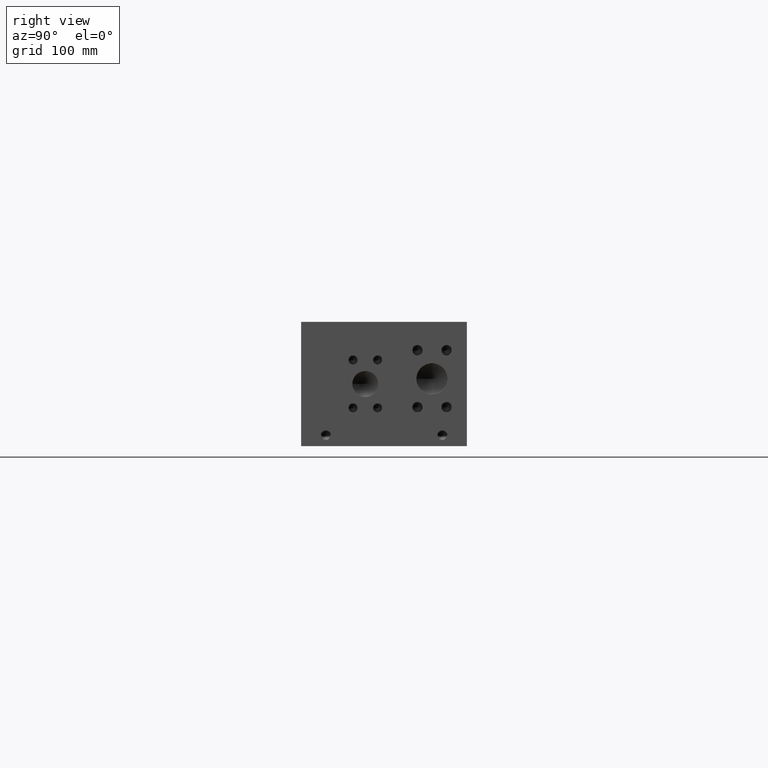
[diagram: clean part render]
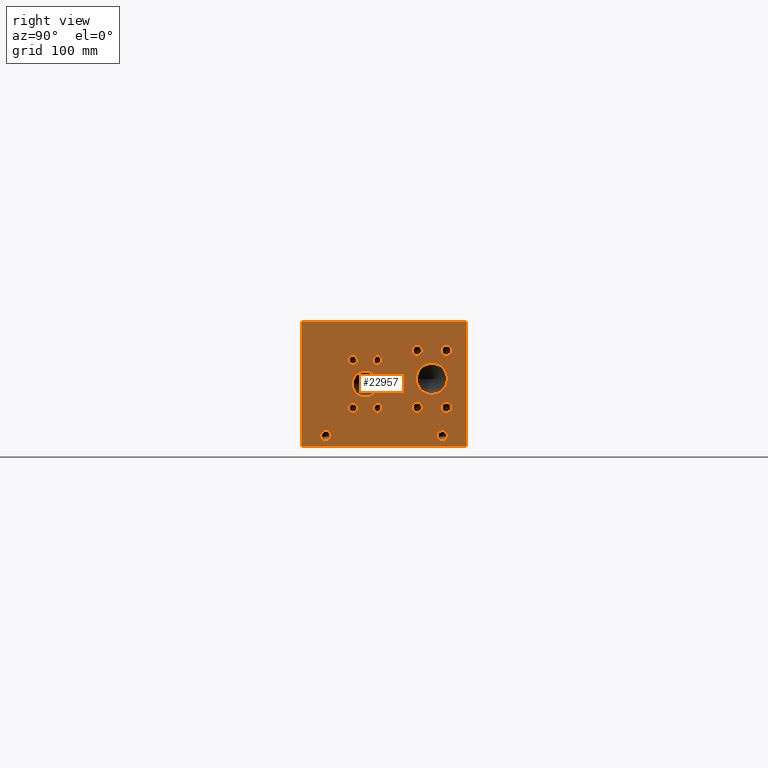
[diagram: same view with one face highlighted and labeled with its STEP entity id]
A machine part, right view. The second image highlights one B-rep face of the part: STEP entity #22957.
In plain terms, the highlighted planar face has unit normal (1, 0, 0).
Its self-contained STEP definition (entity closure, byte-faithful):
#808=CIRCLE('',#24129,19.05);
#809=CIRCLE('',#24130,19.05);
#810=CIRCLE('',#24131,6.35);
#811=CIRCLE('',#24132,6.35);
#812=CIRCLE('',#24133,6.35);
#813=CIRCLE('',#24134,6.35);
#814=CIRCLE('',#24135,6.35);
#815=CIRCLE('',#24136,6.35);
#816=CIRCLE('',#24137,6.35);
#817=CIRCLE('',#24138,6.35);
#818=CIRCLE('',#24139,15.875);
#819=CIRCLE('',#24140,15.875);
#820=CIRCLE('',#24141,5.5626);
#821=CIRCLE('',#24142,5.5626);
#822=CIRCLE('',#24143,5.5626);
#823=CIRCLE('',#24144,5.5626);
#824=CIRCLE('',#24145,5.5626);
#825=CIRCLE('',#24146,5.5626);
#826=CIRCLE('',#24147,5.5626);
#827=CIRCLE('',#24148,5.5626);
#828=CIRCLE('',#24149,6.35);
#829=CIRCLE('',#24150,6.35);
#830=CIRCLE('',#24151,6.35);
#831=CIRCLE('',#24152,6.35);
#2101=B_SPLINE_CURVE_WITH_KNOTS('',2,(#37799,#37800,#37801,#37802),
 .UNSPECIFIED.,.F.,.F.,(3,1,3),(0.,1.,2.),.UNSPECIFIED.);
#2103=B_SPLINE_CURVE_WITH_KNOTS('',2,(#37820,#37821,#37822,#37823),
 .UNSPECIFIED.,.F.,.F.,(3,1,3),(0.,1.,2.),.UNSPECIFIED.);
#2105=B_SPLINE_CURVE_WITH_KNOTS('',2,(#37869,#37870,#37871,#37872),
 .UNSPECIFIED.,.F.,.F.,(3,1,3),(0.,1.,2.),.UNSPECIFIED.);
#2107=B_SPLINE_CURVE_WITH_KNOTS('',2,(#37887,#37888,#37889,#37890),
 .UNSPECIFIED.,.F.,.F.,(3,1,3),(0.,1.,2.),.UNSPECIFIED.);
#2253=FACE_BOUND('',#4463,.T.);
#2254=FACE_BOUND('',#4464,.T.);
#2255=FACE_BOUND('',#4465,.T.);
#2256=FACE_BOUND('',#4466,.T.);
#2257=FACE_BOUND('',#4467,.T.);
#2258=FACE_BOUND('',#4468,.T.);
#2259=FACE_BOUND('',#4469,.T.);
#2260=FACE_BOUND('',#4470,.T.);
#2261=FACE_BOUND('',#4471,.T.);
#2262=FACE_BOUND('',#4472,.T.);
#2263=FACE_BOUND('',#4473,.T.);
#2264=FACE_BOUND('',#4474,.T.);
#2265=FACE_BOUND('',#4475,.T.);
#2266=FACE_BOUND('',#4476,.T.);
#3098=FACE_OUTER_BOUND('',#4462,.T.);
#4462=EDGE_LOOP('',(#18073,#18074,#18075,#18076));
#4463=EDGE_LOOP('',(#18077,#18078));
#4464=EDGE_LOOP('',(#18079,#18080));
#4465=EDGE_LOOP('',(#18081,#18082));
#4466=EDGE_LOOP('',(#18083,#18084));
#4467=EDGE_LOOP('',(#18085,#18086));
#4468=EDGE_LOOP('',(#18087,#18088));
#4469=EDGE_LOOP('',(#18089,#18090));
#4470=EDGE_LOOP('',(#18091,#18092));
#4471=EDGE_LOOP('',(#18093,#18094));
#4472=EDGE_LOOP('',(#18095,#18096));
#4473=EDGE_LOOP('',(#18097,#18098));
#4474=EDGE_LOOP('',(#18099,#18100));
#4475=EDGE_LOOP('',(#18101,#18102,#18103,#18104,#18105,#18106,#18107,#18108));
#4476=EDGE_LOOP('',(#18109,#18110,#18111,#18112,#18113,#18114,#18115,#18116,
#18117));
#5321=LINE('',#31600,#7147);
#6554=LINE('',#37832,#8380);
#6557=LINE('',#37838,#8383);
#6560=LINE('',#37844,#8386);
#6563=LINE('',#37850,#8389);
#6566=LINE('',#37856,#8392);
#6570=LINE('',#37898,#8396);
#6571=LINE('',#37900,#8397);
#6572=LINE('',#37901,#8398);
#6573=LINE('',#37952,#8399);
#6574=LINE('',#37954,#8400);
#6575=LINE('',#37956,#8401);
#6576=LINE('',#37958,#8402);
#6577=LINE('',#37960,#8403);
#6578=LINE('',#37962,#8404);
#6579=LINE('',#37964,#8405);
#6580=LINE('',#37965,#8406);
#7147=VECTOR('',#25681,10.);
#8380=VECTOR('',#27976,10.);
#8383=VECTOR('',#27981,10.);
#8386=VECTOR('',#27986,10.);
#8389=VECTOR('',#27991,10.);
#8392=VECTOR('',#27996,10.);
#8396=VECTOR('',#28004,10.);
#8397=VECTOR('',#28005,10.);
#8398=VECTOR('',#28006,10.);
#8399=VECTOR('',#28055,10.);
#8400=VECTOR('',#28056,10.);
#8401=VECTOR('',#28057,10.);
#8402=VECTOR('',#28058,10.);
#8403=VECTOR('',#28059,10.);
#8404=VECTOR('',#28060,10.);
#8405=VECTOR('',#28061,10.);
#8406=VECTOR('',#28062,10.);
#8962=VERTEX_POINT('',#31597);
#8963=VERTEX_POINT('',#31599);
#10177=VERTEX_POINT('',#37797);
#10178=VERTEX_POINT('',#37798);
#10181=VERTEX_POINT('',#37819);
#10183=VERTEX_POINT('',#37831);
#10185=VERTEX_POINT('',#37837);
#10187=VERTEX_POINT('',#37843);
#10189=VERTEX_POINT('',#37849);
#10191=VERTEX_POINT('',#37855);
#10193=VERTEX_POINT('',#37868);
#10195=VERTEX_POINT('',#37897);
#10196=VERTEX_POINT('',#37899);
#10197=VERTEX_POINT('',#37902);
#10198=VERTEX_POINT('',#37903);
#10199=VERTEX_POINT('',#37906);
#10200=VERTEX_POINT('',#37907);
#10201=VERTEX_POINT('',#37910);
#10202=VERTEX_POINT('',#37911);
#10203=VERTEX_POINT('',#37914);
#10204=VERTEX_POINT('',#37915);
#10205=VERTEX_POINT('',#37918);
#10206=VERTEX_POINT('',#37919);
#10207=VERTEX_POINT('',#37922);
#10208=VERTEX_POINT('',#37923);
#10209=VERTEX_POINT('',#37926);
#10210=VERTEX_POINT('',#37927);
#10211=VERTEX_POINT('',#37930);
#10212=VERTEX_POINT('',#37931);
#10213=VERTEX_POINT('',#37934);
#10214=VERTEX_POINT('',#37935);
#10215=VERTEX_POINT('',#37938);
#10216=VERTEX_POINT('',#37939);
#10217=VERTEX_POINT('',#37942);
#10218=VERTEX_POINT('',#37943);
#10219=VERTEX_POINT('',#37946);
#10220=VERTEX_POINT('',#37947);
#10221=VERTEX_POINT('',#37950);
#10222=VERTEX_POINT('',#37951);
#10223=VERTEX_POINT('',#37953);
#10224=VERTEX_POINT('',#37955);
#10225=VERTEX_POINT('',#37957);
#10226=VERTEX_POINT('',#37959);
#10227=VERTEX_POINT('',#37961);
#10228=VERTEX_POINT('',#37963);
#11353=EDGE_CURVE('',#8962,#8963,#5321,.T.);
#13111=EDGE_CURVE('',#10177,#10178,#2101,.T.);
#13115=EDGE_CURVE('',#10181,#10177,#2103,.T.);
#13118=EDGE_CURVE('',#10183,#10181,#6554,.T.);
#13121=EDGE_CURVE('',#10185,#10183,#6557,.T.);
#13124=EDGE_CURVE('',#10187,#10185,#6560,.T.);
#13127=EDGE_CURVE('',#10189,#10187,#6563,.T.);
#13130=EDGE_CURVE('',#10191,#10189,#6566,.T.);
#13133=EDGE_CURVE('',#10193,#10191,#2105,.T.);
#13136=EDGE_CURVE('',#10178,#10193,#2107,.T.);
#13138=EDGE_CURVE('',#8962,#10195,#6570,.T.);
#13139=EDGE_CURVE('',#10195,#10196,#6571,.T.);
#13140=EDGE_CURVE('',#8963,#10196,#6572,.T.);
#13141=EDGE_CURVE('',#10197,#10198,#808,.T.);
#13142=EDGE_CURVE('',#10198,#10197,#809,.T.);
#13143=EDGE_CURVE('',#10199,#10200,#810,.T.);
#13144=EDGE_CURVE('',#10200,#10199,#811,.T.);
#13145=EDGE_CURVE('',#10201,#10202,#812,.T.);
#13146=EDGE_CURVE('',#10202,#10201,#813,.T.);
#13147=EDGE_CURVE('',#10203,#10204,#814,.T.);
#13148=EDGE_CURVE('',#10204,#10203,#815,.T.);
#13149=EDGE_CURVE('',#10205,#10206,#816,.T.);
#13150=EDGE_CURVE('',#10206,#10205,#817,.T.);
#13151=EDGE_CURVE('',#10207,#10208,#818,.T.);
#13152=EDGE_CURVE('',#10208,#10207,#819,.T.);
#13153=EDGE_CURVE('',#10209,#10210,#820,.T.);
#13154=EDGE_CURVE('',#10210,#10209,#821,.T.);
#13155=EDGE_CURVE('',#10211,#10212,#822,.T.);
#13156=EDGE_CURVE('',#10212,#10211,#823,.T.);
#13157=EDGE_CURVE('',#10213,#10214,#824,.T.);
#13158=EDGE_CURVE('',#10214,#10213,#825,.T.);
#13159=EDGE_CURVE('',#10215,#10216,#826,.T.);
#13160=EDGE_CURVE('',#10216,#10215,#827,.T.);
#13161=EDGE_CURVE('',#10217,#10218,#828,.T.);
#13162=EDGE_CURVE('',#10218,#10217,#829,.T.);
#13163=EDGE_CURVE('',#10219,#10220,#830,.T.);
#13164=EDGE_CURVE('',#10220,#10219,#831,.T.);
#13165=EDGE_CURVE('',#10221,#10222,#6573,.T.);
#13166=EDGE_CURVE('',#10222,#10223,#6574,.T.);
#13167=EDGE_CURVE('',#10223,#10224,#6575,.T.);
#13168=EDGE_CURVE('',#10224,#10225,#6576,.T.);
#13169=EDGE_CURVE('',#10225,#10226,#6577,.T.);
#13170=EDGE_CURVE('',#10226,#10227,#6578,.T.);
#13171=EDGE_CURVE('',#10227,#10228,#6579,.T.);
#13172=EDGE_CURVE('',#10228,#10221,#6580,.T.);
#18073=ORIENTED_EDGE('',*,*,#13138,.T.);
#18074=ORIENTED_EDGE('',*,*,#13139,.T.);
#18075=ORIENTED_EDGE('',*,*,#13140,.F.);
#18076=ORIENTED_EDGE('',*,*,#11353,.F.);
#18077=ORIENTED_EDGE('',*,*,#13141,.T.);
#18078=ORIENTED_EDGE('',*,*,#13142,.T.);
#18079=ORIENTED_EDGE('',*,*,#13143,.T.);
#18080=ORIENTED_EDGE('',*,*,#13144,.T.);
#18081=ORIENTED_EDGE('',*,*,#13145,.T.);
#18082=ORIENTED_EDGE('',*,*,#13146,.T.);
#18083=ORIENTED_EDGE('',*,*,#13147,.T.);
#18084=ORIENTED_EDGE('',*,*,#13148,.T.);
#18085=ORIENTED_EDGE('',*,*,#13149,.T.);
#18086=ORIENTED_EDGE('',*,*,#13150,.T.);
#18087=ORIENTED_EDGE('',*,*,#13151,.T.);
#18088=ORIENTED_EDGE('',*,*,#13152,.T.);
#18089=ORIENTED_EDGE('',*,*,#13153,.T.);
#18090=ORIENTED_EDGE('',*,*,#13154,.T.);
#18091=ORIENTED_EDGE('',*,*,#13155,.T.);
#18092=ORIENTED_EDGE('',*,*,#13156,.T.);
#18093=ORIENTED_EDGE('',*,*,#13157,.T.);
#18094=ORIENTED_EDGE('',*,*,#13158,.T.);
#18095=ORIENTED_EDGE('',*,*,#13159,.T.);
#18096=ORIENTED_EDGE('',*,*,#13160,.T.);
#18097=ORIENTED_EDGE('',*,*,#13161,.T.);
#18098=ORIENTED_EDGE('',*,*,#13162,.T.);
#18099=ORIENTED_EDGE('',*,*,#13163,.T.);
#18100=ORIENTED_EDGE('',*,*,#13164,.T.);
#18101=ORIENTED_EDGE('',*,*,#13165,.T.);
#18102=ORIENTED_EDGE('',*,*,#13166,.T.);
#18103=ORIENTED_EDGE('',*,*,#13167,.T.);
#18104=ORIENTED_EDGE('',*,*,#13168,.T.);
#18105=ORIENTED_EDGE('',*,*,#13169,.T.);
#18106=ORIENTED_EDGE('',*,*,#13170,.T.);
#18107=ORIENTED_EDGE('',*,*,#13171,.T.);
#18108=ORIENTED_EDGE('',*,*,#13172,.T.);
#18109=ORIENTED_EDGE('',*,*,#13111,.T.);
#18110=ORIENTED_EDGE('',*,*,#13136,.T.);
#18111=ORIENTED_EDGE('',*,*,#13133,.T.);
#18112=ORIENTED_EDGE('',*,*,#13130,.T.);
#18113=ORIENTED_EDGE('',*,*,#13127,.T.);
#18114=ORIENTED_EDGE('',*,*,#13124,.T.);
#18115=ORIENTED_EDGE('',*,*,#13121,.T.);
#18116=ORIENTED_EDGE('',*,*,#13118,.T.);
#18117=ORIENTED_EDGE('',*,*,#13115,.T.);
#21549=PLANE('',#24128);
#22957=ADVANCED_FACE('',(#3098,#2253,#2254,#2255,#2256,#2257,#2258,#2259,
#2260,#2261,#2262,#2263,#2264,#2265,#2266),#21549,.T.);
#24128=AXIS2_PLACEMENT_3D('',#37896,#28002,#28003);
#24129=AXIS2_PLACEMENT_3D('',#37904,#28007,#28008);
#24130=AXIS2_PLACEMENT_3D('',#37905,#28009,#28010);
#24131=AXIS2_PLACEMENT_3D('',#37908,#28011,#28012);
#24132=AXIS2_PLACEMENT_3D('',#37909,#28013,#28014);
#24133=AXIS2_PLACEMENT_3D('',#37912,#28015,#28016);
#24134=AXIS2_PLACEMENT_3D('',#37913,#28017,#28018);
#24135=AXIS2_PLACEMENT_3D('',#37916,#28019,#28020);
#24136=AXIS2_PLACEMENT_3D('',#37917,#28021,#28022);
#24137=AXIS2_PLACEMENT_3D('',#37920,#28023,#28024);
#24138=AXIS2_PLACEMENT_3D('',#37921,#28025,#28026);
#24139=AXIS2_PLACEMENT_3D('',#37924,#28027,#28028);
#24140=AXIS2_PLACEMENT_3D('',#37925,#28029,#28030);
#24141=AXIS2_PLACEMENT_3D('',#37928,#28031,#28032);
#24142=AXIS2_PLACEMENT_3D('',#37929,#28033,#28034);
#24143=AXIS2_PLACEMENT_3D('',#37932,#28035,#28036);
#24144=AXIS2_PLACEMENT_3D('',#37933,#28037,#28038);
#24145=AXIS2_PLACEMENT_3D('',#37936,#28039,#28040);
#24146=AXIS2_PLACEMENT_3D('',#37937,#28041,#28042);
#24147=AXIS2_PLACEMENT_3D('',#37940,#28043,#28044);
#24148=AXIS2_PLACEMENT_3D('',#37941,#28045,#28046);
#24149=AXIS2_PLACEMENT_3D('',#37944,#28047,#28048);
#24150=AXIS2_PLACEMENT_3D('',#37945,#28049,#28050);
#24151=AXIS2_PLACEMENT_3D('',#37948,#28051,#28052);
#24152=AXIS2_PLACEMENT_3D('',#37949,#28053,#28054);
#25681=DIRECTION('',(0.,0.,1.));
#27976=DIRECTION('',(0.,1.,0.));
#27981=DIRECTION('',(0.,0.,1.));
#27986=DIRECTION('',(0.,-1.,0.));
#27991=DIRECTION('',(0.,0.,-1.));
#27996=DIRECTION('',(0.,-1.,0.));
#28002=DIRECTION('center_axis',(1.,0.,0.));
#28003=DIRECTION('ref_axis',(0.,1.,0.));
#28004=DIRECTION('',(0.,1.,0.));
#28005=DIRECTION('',(0.,0.,1.));
#28006=DIRECTION('',(0.,1.,0.));
#28007=DIRECTION('center_axis',(-1.,0.,0.));
#28008=DIRECTION('ref_axis',(0.,1.,0.));
#28009=DIRECTION('center_axis',(-1.,0.,0.));
#28010=DIRECTION('ref_axis',(0.,1.,0.));
#28011=DIRECTION('center_axis',(-1.,0.,0.));
#28012=DIRECTION('ref_axis',(0.,1.,0.));
#28013=DIRECTION('center_axis',(-1.,0.,0.));
#28014=DIRECTION('ref_axis',(0.,1.,0.));
#28015=DIRECTION('center_axis',(-1.,0.,0.));
#28016=DIRECTION('ref_axis',(0.,1.,0.));
#28017=DIRECTION('center_axis',(-1.,0.,0.));
#28018=DIRECTION('ref_axis',(0.,1.,0.));
#28019=DIRECTION('center_axis',(-1.,0.,0.));
#28020=DIRECTION('ref_axis',(0.,1.,0.));
#28021=DIRECTION('center_axis',(-1.,0.,0.));
#28022=DIRECTION('ref_axis',(0.,1.,0.));
#28023=DIRECTION('center_axis',(-1.,0.,0.));
#28024=DIRECTION('ref_axis',(0.,1.,0.));
#28025=DIRECTION('center_axis',(-1.,0.,0.));
#28026=DIRECTION('ref_axis',(0.,1.,0.));
#28027=DIRECTION('center_axis',(-1.,0.,0.));
#28028=DIRECTION('ref_axis',(0.,1.,0.));
#28029=DIRECTION('center_axis',(-1.,0.,0.));
#28030=DIRECTION('ref_axis',(0.,1.,0.));
#28031=DIRECTION('center_axis',(-1.,0.,0.));
#28032=DIRECTION('ref_axis',(0.,1.,0.));
#28033=DIRECTION('center_axis',(-1.,0.,0.));
#28034=DIRECTION('ref_axis',(0.,1.,0.));
#28035=DIRECTION('center_axis',(-1.,0.,0.));
#28036=DIRECTION('ref_axis',(0.,1.,0.));
#28037=DIRECTION('center_axis',(-1.,0.,0.));
#28038=DIRECTION('ref_axis',(0.,1.,0.));
#28039=DIRECTION('center_axis',(-1.,0.,0.));
#28040=DIRECTION('ref_axis',(0.,1.,0.));
#28041=DIRECTION('center_axis',(-1.,0.,0.));
#28042=DIRECTION('ref_axis',(0.,1.,0.));
#28043=DIRECTION('center_axis',(-1.,0.,0.));
#28044=DIRECTION('ref_axis',(0.,1.,0.));
#28045=DIRECTION('center_axis',(-1.,0.,0.));
#28046=DIRECTION('ref_axis',(0.,1.,0.));
#28047=DIRECTION('center_axis',(-1.,0.,0.));
#28048=DIRECTION('ref_axis',(0.,1.,0.));
#28049=DIRECTION('center_axis',(-1.,0.,0.));
#28050=DIRECTION('ref_axis',(0.,1.,0.));
#28051=DIRECTION('center_axis',(-1.,0.,0.));
#28052=DIRECTION('ref_axis',(0.,1.,0.));
#28053=DIRECTION('center_axis',(-1.,0.,0.));
#28054=DIRECTION('ref_axis',(0.,1.,0.));
#28055=DIRECTION('',(0.,-1.,0.));
#28056=DIRECTION('',(0.,0.,1.));
#28057=DIRECTION('',(0.,-1.,0.));
#28058=DIRECTION('',(0.,0.,1.));
#28059=DIRECTION('',(0.,1.,0.));
#28060=DIRECTION('',(0.,0.,-1.));
#28061=DIRECTION('',(0.,-1.,0.));
#28062=DIRECTION('',(0.,0.,-1.));
#31597=CARTESIAN_POINT('',(860.425,0.,0.));
#31599=CARTESIAN_POINT('',(860.425,0.,152.4));
#31600=CARTESIAN_POINT('',(860.425,0.,0.));
#37797=CARTESIAN_POINT('',(860.425,80.1005672023594,132.166368143971));
#37798=CARTESIAN_POINT('',(860.425,80.857009654532,130.648337372604));
#37799=CARTESIAN_POINT('Ctrl Pts',(860.425,80.1005672023594,132.166368143971));
#37800=CARTESIAN_POINT('Ctrl Pts',(860.425,80.4556320268486,131.924512393956));
#37801=CARTESIAN_POINT('Ctrl Pts',(860.425,80.857009654532,131.178361675827));
#37802=CARTESIAN_POINT('Ctrl Pts',(860.425,80.857009654532,130.648337372604));
#37819=CARTESIAN_POINT('',(860.425,78.4384521543883,132.562599904633));
#37820=CARTESIAN_POINT('Ctrl Pts',(860.425,78.4384521543883,132.562599904633));
#37821=CARTESIAN_POINT('Ctrl Pts',(860.425,79.0044975267624,132.562599904633));
#37822=CARTESIAN_POINT('Ctrl Pts',(860.425,79.796961048086,132.377348691856));
#37823=CARTESIAN_POINT('Ctrl Pts',(860.425,80.1005672023594,132.166368143971));
#37831=CARTESIAN_POINT('',(860.425,76.8432333776978,132.562599904633));
#37832=CARTESIAN_POINT('',(860.425,38.4216166888489,132.562599904633));
#37837=CARTESIAN_POINT('',(860.425,76.8432333776978,126.2126));
#37838=CARTESIAN_POINT('',(860.425,76.8432333776978,63.1063));
#37843=CARTESIAN_POINT('',(860.425,77.6871555692373,126.2126));
#37844=CARTESIAN_POINT('',(860.425,38.8435777846186,126.2126));
#37849=CARTESIAN_POINT('',(860.425,77.6871555692373,128.579698829928));
#37850=CARTESIAN_POINT('',(860.425,77.6871555692373,64.2898494149639));
#37855=CARTESIAN_POINT('',(860.425,78.4024310852372,128.579698829928));
#37856=CARTESIAN_POINT('',(860.425,39.2012155426186,128.579698829928));
#37868=CARTESIAN_POINT('',(860.425,80.3012560162011,129.23836980869));
#37869=CARTESIAN_POINT('Ctrl Pts',(860.425,80.3012560162011,129.23836980869));
#37870=CARTESIAN_POINT('Ctrl Pts',(860.425,79.9719205268198,128.914180186331));
#37871=CARTESIAN_POINT('Ctrl Pts',(860.425,79.0816855320861,128.579698829928));
#37872=CARTESIAN_POINT('Ctrl Pts',(860.425,78.4024310852372,128.579698829928));
#37887=CARTESIAN_POINT('Ctrl Pts',(860.425,80.857009654532,130.648337372604));
#37888=CARTESIAN_POINT('Ctrl Pts',(860.425,80.857009654532,130.236668010877));
#37889=CARTESIAN_POINT('Ctrl Pts',(860.425,80.5636952343018,129.495663159769));
#37890=CARTESIAN_POINT('Ctrl Pts',(860.425,80.3012560162011,129.23836980869));
#37896=CARTESIAN_POINT('Origin',(860.425,0.,0.));
#37897=CARTESIAN_POINT('',(860.425,203.2,0.));
#37898=CARTESIAN_POINT('',(860.425,0.,0.));
#37899=CARTESIAN_POINT('',(860.425,203.2,152.4));
#37900=CARTESIAN_POINT('',(860.425,203.2,0.));
#37901=CARTESIAN_POINT('',(860.425,0.,152.4));
#37902=CARTESIAN_POINT('',(860.425,179.4002,82.55));
#37903=CARTESIAN_POINT('',(860.425,141.3002,82.55));
#37904=CARTESIAN_POINT('Origin',(860.425,160.3502,82.55));
#37905=CARTESIAN_POINT('Origin',(860.425,160.3502,82.55));
#37906=CARTESIAN_POINT('',(860.425,148.844,117.475));
#37907=CARTESIAN_POINT('',(860.425,136.144,117.475));
#37908=CARTESIAN_POINT('Origin',(860.425,142.494,117.475));
#37909=CARTESIAN_POINT('Origin',(860.425,142.494,117.475));
#37910=CARTESIAN_POINT('',(860.425,184.5564,47.625));
#37911=CARTESIAN_POINT('',(860.425,171.8564,47.625));
#37912=CARTESIAN_POINT('Origin',(860.425,178.2064,47.625));
#37913=CARTESIAN_POINT('Origin',(860.425,178.2064,47.625));
#37914=CARTESIAN_POINT('',(860.425,184.5564,117.475));
#37915=CARTESIAN_POINT('',(860.425,171.8564,117.475));
#37916=CARTESIAN_POINT('Origin',(860.425,178.2064,117.475));
#37917=CARTESIAN_POINT('Origin',(860.425,178.2064,117.475));
#37918=CARTESIAN_POINT('',(860.425,148.844,47.625));
#37919=CARTESIAN_POINT('',(860.425,136.144,47.625));
#37920=CARTESIAN_POINT('Origin',(860.425,142.494,47.625));
#37921=CARTESIAN_POINT('Origin',(860.425,142.494,47.625));
#37922=CARTESIAN_POINT('',(860.425,94.4626,76.2));
#37923=CARTESIAN_POINT('',(860.425,62.7126,76.2));
#37924=CARTESIAN_POINT('Origin',(860.425,78.5876,76.2));
#37925=CARTESIAN_POINT('Origin',(860.425,78.5876,76.2));
#37926=CARTESIAN_POINT('',(860.425,69.0626,46.8376));
#37927=CARTESIAN_POINT('',(860.425,57.9374,46.8376));
#37928=CARTESIAN_POINT('Origin',(860.425,63.5,46.8376));
#37929=CARTESIAN_POINT('Origin',(860.425,63.5,46.8376));
#37930=CARTESIAN_POINT('',(860.425,99.2378,105.5624));
#37931=CARTESIAN_POINT('',(860.425,88.1126,105.5624));
#37932=CARTESIAN_POINT('Origin',(860.425,93.6752,105.5624));
#37933=CARTESIAN_POINT('Origin',(860.425,93.6752,105.5624));
#37934=CARTESIAN_POINT('',(860.425,69.0626,105.5624));
#37935=CARTESIAN_POINT('',(860.425,57.9374,105.5624));
#37936=CARTESIAN_POINT('Origin',(860.425,63.5,105.5624));
#37937=CARTESIAN_POINT('Origin',(860.425,63.5,105.5624));
#37938=CARTESIAN_POINT('',(860.425,99.2378,46.8376));
#37939=CARTESIAN_POINT('',(860.425,88.1126,46.8376));
#37940=CARTESIAN_POINT('Origin',(860.425,93.6752,46.8376));
#37941=CARTESIAN_POINT('Origin',(860.425,93.6752,46.8376));
#37942=CARTESIAN_POINT('',(860.425,179.3748,12.7));
#37943=CARTESIAN_POINT('',(860.425,166.6748,12.7));
#37944=CARTESIAN_POINT('Origin',(860.425,173.0248,12.7));
#37945=CARTESIAN_POINT('Origin',(860.425,173.0248,12.7));
#37946=CARTESIAN_POINT('',(860.425,36.5252,12.7));
#37947=CARTESIAN_POINT('',(860.425,23.8252,12.7));
#37948=CARTESIAN_POINT('Origin',(860.425,30.1752,12.7));
#37949=CARTESIAN_POINT('Origin',(860.425,30.1752,12.7));
#37950=CARTESIAN_POINT('',(860.425,160.957165271453,135.7376));
#37951=CARTESIAN_POINT('',(860.425,160.113243079913,135.7376));
#37952=CARTESIAN_POINT('',(860.425,80.4785826357265,135.7376));
#37953=CARTESIAN_POINT('',(860.425,160.113243079913,141.336303319482));
#37954=CARTESIAN_POINT('',(860.425,160.113243079913,67.8688));
#37955=CARTESIAN_POINT('',(860.425,157.982854132978,141.336303319482));
#37956=CARTESIAN_POINT('',(860.425,80.0566215399567,141.336303319482));
#37957=CARTESIAN_POINT('',(860.425,157.982854132978,142.087599904633));
#37958=CARTESIAN_POINT('',(860.425,157.982854132978,70.6681516597408));
#37959=CARTESIAN_POINT('',(860.425,163.087554218388,142.087599904633));
#37960=CARTESIAN_POINT('',(860.425,78.9914270664892,142.087599904633));
#37961=CARTESIAN_POINT('',(860.425,163.087554218388,141.336303319482));
#37962=CARTESIAN_POINT('',(860.425,163.087554218388,71.0437999523163));
#37963=CARTESIAN_POINT('',(860.425,160.957165271453,141.336303319482));
#37964=CARTESIAN_POINT('',(860.425,81.543777109194,141.336303319482));
#37965=CARTESIAN_POINT('',(860.425,160.957165271453,70.6681516597408));